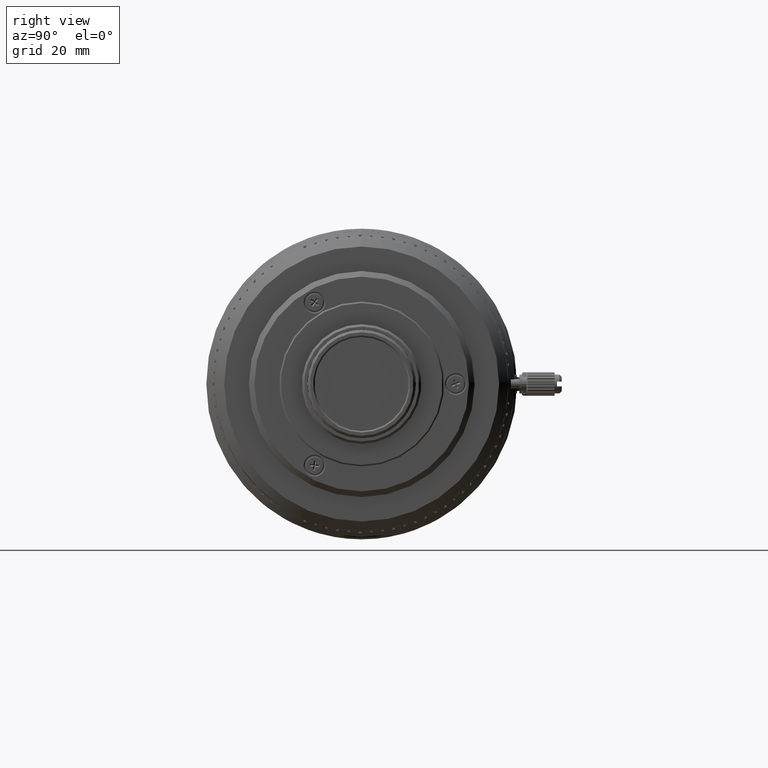
[diagram: clean part render]
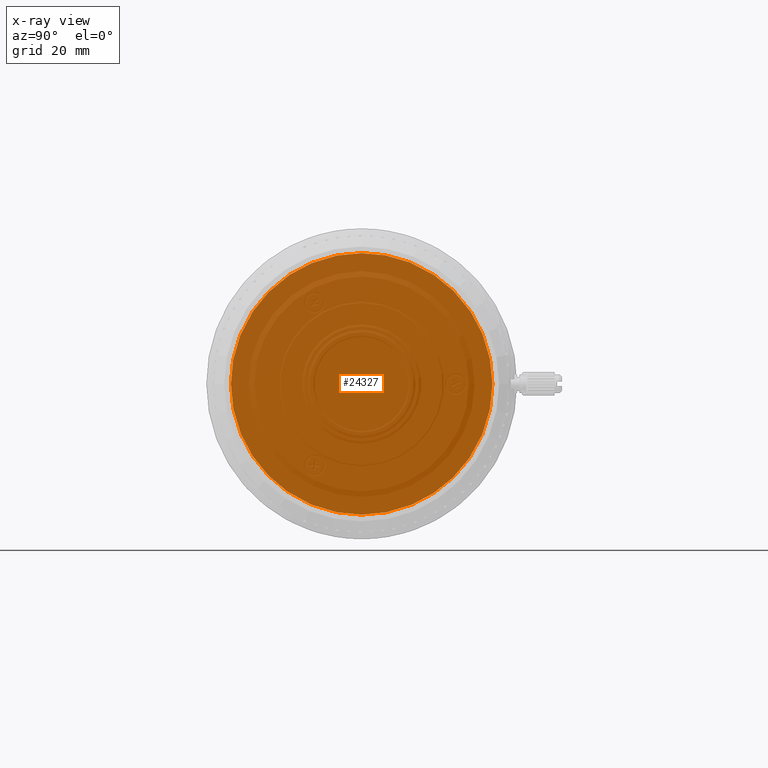
[diagram: x-ray — body ghosted, one internal face saturated and labeled with its STEP entity id]
A machine part, right view, then the same camera in x-ray: the body is ghosted and one INTERNAL B-rep face — a face not visible from any outside direction — is saturated and labeled: STEP entity #24327.
In plain terms, the highlighted planar face has unit normal (1, 0, -0).
Its self-contained STEP definition (entity closure, byte-faithful):
#1832 = CARTESIAN_POINT ( 'NONE',  ( 6.670101949384200424, 27.77005671654000452, 1.698375226501509072 ) ) ;
#2353 = CARTESIAN_POINT ( 'NONE',  ( 6.670101949384201312, 9.855068296384823512, 25.96299779098030314 ) ) ;
#2878 = CARTESIAN_POINT ( 'NONE',  ( 6.670101949384198647, 23.21131332216800303, 15.24514636743844953 ) ) ;
#2925 = CARTESIAN_POINT ( 'NONE',  ( 6.670101949384203088, -27.71210535098479255, -2.117719086140311902 ) ) ;
#3010 = CARTESIAN_POINT ( 'NONE',  ( 6.670101949384203976, -23.30742827021385111, 15.09779772559413047 ) ) ;
#3416 = CARTESIAN_POINT ( 'NONE',  ( 6.670101949384199536, 26.15183450016001032, 9.384460267777450682 ) ) ;
#3551 = CARTESIAN_POINT ( 'NONE',  ( 6.670101949384203976, -3.382572490651415187, 27.61555248508863869 ) ) ;
#3938 = CARTESIAN_POINT ( 'NONE',  ( 6.670101949384202200, 15.09779833443066721, 23.30742787575882602 ) ) ;
#3981 = CARTESIAN_POINT ( 'NONE',  ( 6.670101949384201312, -18.95872858976617081, -20.31408845770473448 ) ) ;
#4593 = CARTESIAN_POINT ( 'NONE',  ( 6.670101949384203976, -23.68348893255846477, 14.50412153896510326 ) ) ;
#5125 = CARTESIAN_POINT ( 'NONE',  ( 6.670101949384202200, -10.24818250076913095, 25.80991334626112987 ) ) ;
#5779 = CARTESIAN_POINT ( 'NONE',  ( 6.670101949384195983, 4.687504813459266728, -27.37194922564432531 ) ) ;
#5943 = CARTESIAN_POINT ( 'NONE',  ( 6.670101949384202200, -26.83397132795438722, -7.248706794133589426 ) ) ;
#6474 = CARTESIAN_POINT ( 'NONE',  ( 6.670101949384203088, -23.30744810404437573, -15.09775929170856834 ) ) ;
#6828 = CARTESIAN_POINT ( 'NONE',  ( 6.670101949384200424, 11.09440249698243086, -25.47492068714787194 ) ) ;
#6987 = CARTESIAN_POINT ( 'NONE',  ( 6.670101949384199536, -5.246713531095918093, -27.27001455910579963 ) ) ;
#7343 = CARTESIAN_POINT ( 'NONE',  ( 6.670101949384199536, 5.025457506980164801, -27.31156511289545108 ) ) ;
#7511 = CARTESIAN_POINT ( 'NONE',  ( 6.670101949384200424, -5.825497634454594120, -27.15384778733873361 ) ) ;
#7859 = CARTESIAN_POINT ( 'NONE',  ( 6.670101949384202200, 10.03863520394771847, -25.89222865959326825 ) ) ;
#8315 = CARTESIAN_POINT ( 'NONE',  ( 6.670101949384209306, 2.574551474000181512E-06, 27.77005605435178381 ) ) ;
#8642 = VERTEX_POINT ( 'NONE', #62530 ) ;
#9813 = CARTESIAN_POINT ( 'NONE',  ( 6.670101949384198647, 25.74415323164166480, 10.41254895580198614 ) ) ;
#10852 = CARTESIAN_POINT ( 'NONE',  ( 6.670101949384196871, 26.58627627152202777, 8.110186926303850186 ) ) ;
#10982 = CARTESIAN_POINT ( 'NONE',  ( 6.670101949384203976, -25.86150201199690457, 10.11730061791811686 ) ) ;
#11370 = CARTESIAN_POINT ( 'NONE',  ( 6.670101949384197759, 18.28056020399055726, 20.99228335459726935 ) ) ;
#11508 = CARTESIAN_POINT ( 'NONE',  ( 6.670101949384201312, -6.592123464492728679, 26.98305250840043712 ) ) ;
#11919 = CARTESIAN_POINT ( 'NONE',  ( 6.670101949384199536, 23.75701467543372303, 14.41042302648458318 ) ) ;
#11962 = CARTESIAN_POINT ( 'NONE',  ( 6.670101949384199536, -10.33099005839846996, -25.77688046542336764 ) ) ;
#12047 = CARTESIAN_POINT ( 'NONE',  ( 6.670101949384204865, -27.14251842005277382, 5.938873092803082621 ) ) ;
#12565 = CARTESIAN_POINT ( 'NONE',  ( 6.670101949384203088, -10.27651215307760779, 25.79864904480076149 ) ) ;
#12835 = CARTESIAN_POINT ( 'NONE',  ( 6.670101949384202200, -27.77005384932500576, 2.082634074917763043E-13 ) ) ;
#13083 = CARTESIAN_POINT ( 'NONE',  ( 6.670101949384202200, -27.77005384932500576, 2.082634074917763043E-13 ) ) ;
#13750 = CARTESIAN_POINT ( 'NONE',  ( 6.670101949384197759, 23.75685348575451172, -14.41073537938581417 ) ) ;
#13918 = CARTESIAN_POINT ( 'NONE',  ( 6.670101949384197759, -1.698197581845809268, -27.77002444160090278 ) ) ;
#13996 = CARTESIAN_POINT ( 'NONE',  ( 6.670101949384201312, 4.948743559974771777, 27.32557193565072140 ) ) ;
#14281 = CARTESIAN_POINT ( 'NONE',  ( 6.670101949384197759, 23.11150435916493961, -15.39604836254130760 ) ) ;
#14441 = CARTESIAN_POINT ( 'NONE',  ( 6.670101949384201312, -11.73012054310569674, -25.17889208261124878 ) ) ;
#14804 = CARTESIAN_POINT ( 'NONE',  ( 6.670101949384197759, 25.80991587860422953, -10.24817325738789719 ) ) ;
#14987 = CARTESIAN_POINT ( 'NONE',  ( 6.670101949384203088, -10.24817199266917811, -25.80991638079769146 ) ) ;
#15157 = B_SPLINE_CURVE_WITH_KNOTS ( 'NONE', 3,
 ( #43899, #1832, #76341, #100796, #59325, #91789, #58797, #18878, #84862, #51335, #10852, #3416, #28462, #91262, #68344, #9813, #50275, #92835, #101311, #26331, #11919, #2878, #66762, #43375, #90741, #99227, #67810, #42318, #35907, #11370, #44427, #92306, #3938, #74762, #18351, #75807, #50815, #83278, #42841, #100275, #27401, #19397, #75292, #2353, #51859, #84326, #36433, #68869, #61944, #103927, #13996, #93359, #52928, #20468, #71502, #85896, #54490, #61433 ),
 .UNSPECIFIED., .F., .F.,
 ( 4, 2, 2, 1, 1, 1, 1, 1, 2, 2, 1, 1, 1, 1, 1, 2, 2, 1, 1, 1, 1, 2, 2, 2, 1, 1, 1, 1, 2, 2, 1, 1, 1, 1, 1, 2, 2, 1, 1, 1, 1, 1, 4 ),
 ( 0.000000000000000000, 0.06249999605359574106, 0.06347655849193319100, 0.06445312093027064093, 0.06640624580694552692, 0.07031249556029531278, 0.07812499506699488450, 0.09374999408039402793, 0.1249999921071923148, 0.1259765545455297786, 0.1269531169838672424, 0.1289062418605421423, 0.1328124916138919975, 0.1406249911205917358, 0.1562499901339912123, 0.1874999881607900820, 0.1894531130374650651, 0.1914062379141400760, 0.1953124876674902088, 0.2031249871741903357, 0.2187499861875906171, 0.2499999842143912354, 0.3124999802679924166, 0.3144531051446674552, 0.3164062300213424939, 0.3203124797746924046, 0.3281249792813923927, 0.3437499782947923688, 0.3749999763215923210, 0.3759765387599298125, 0.3769531011982673596, 0.3789062260749423428, 0.3828124758282923645, 0.3906249753349924636, 0.4062499743483926617, 0.4374999723751932246, 0.4384765348135307161, 0.4394530972518682077, 0.4414062221285432464, 0.4453124718818933792, 0.4531249713885935892, 0.4687499704019938984, 0.4999999684287946833 ),
 .UNSPECIFIED. ) ;
#15347 = B_SPLINE_CURVE_WITH_KNOTS ( 'NONE', 3,
 ( #18919, #66803, #2925, #41821, #51382, #83846, #43414, #100316, #59894, #19446, #55982, #5943, #31514, #95888, #71417, #101361, #22980, #71939, #88431, #55453, #79402, #38965, #78885, #68917, #54415, #6474, #96928, #79930, #76912, #3981, #54933, #63946, #103848, #38436, #47462, #24037, #30992, #40005, #87378, #14441, #72456, #95369, #39491, #11962, #23514, #14987, #46924, #63432, #21939, #7511, #87901, #6987, #104369, #86858, #22455, #36479, #13918, #96408 ),
 .UNSPECIFIED., .F., .F.,
 ( 4, 1, 1, 1, 1, 1, 2, 2, 1, 1, 1, 1, 1, 2, 2, 1, 1, 1, 1, 2, 2, 2, 1, 1, 1, 1, 2, 2, 1, 1, 1, 1, 1, 2, 2, 1, 1, 1, 1, 1, 2, 2, 4 ),
 ( 0.000000000000000000, 0.03125000197269482000, 0.04687500295904221959, 0.05468750345221591591, 0.05859375369880277795, 0.06054687882209619509, 0.06152344138374292448, 0.06250000394538963999, 0.09375000591808567429, 0.1093750069044336914, 0.1171875073976077208, 0.1210937576441947078, 0.1230468827674882498, 0.1240234453291350070, 0.1250000078907817780, 0.1562500098634788115, 0.1718750108498273421, 0.1796875113430016213, 0.1835937615895887887, 0.1855468867128824140, 0.1875000118361760115, 0.2500000157815736590, 0.2812500177542724411, 0.2968750187406218877, 0.3046875192337966110, 0.3085937694803839726, 0.3105468946036776812, 0.3125000197269713897, 0.3437500216996700608, 0.3593750226860193964, 0.3671875231791941196, 0.3710937734257814813, 0.3730468985490751344, 0.3740234611107219886, 0.3750000236723687874, 0.4062500256450676805, 0.4218750266314171826, 0.4296875271245918504, 0.4335937773711792120, 0.4355469024944728651, 0.4365234650561196639, 0.4375000276177664627, 0.5000000315631657477 ),
 .UNSPECIFIED. ) ;
#15350 = CARTESIAN_POINT ( 'NONE',  ( 6.670101949384197759, 25.50876632935982968, -10.98084523781596467 ) ) ;
#15865 = CARTESIAN_POINT ( 'NONE',  ( 6.670101949384199536, 16.80039126075033806, -22.19456993233012554 ) ) ;
#16395 = EDGE_CURVE ( 'NONE', #38489, #8642, #77248, .T. ) ;
#16882 = FACE_OUTER_BOUND ( 'NONE', #101145, .T. ) ;
#18351 = CARTESIAN_POINT ( 'NONE',  ( 6.670101949384198647, 14.85127962036341032, 23.46574604798090746 ) ) ;
#18878 = CARTESIAN_POINT ( 'NONE',  ( 6.670101949384196871, 27.23247701047969827, 5.439837366004010022 ) ) ;
#18919 = CARTESIAN_POINT ( 'NONE',  ( 6.670101949384202200, -27.77005384932500576, 2.082634074917763043E-13 ) ) ;
#19006 = CARTESIAN_POINT ( 'NONE',  ( 6.670101949384202200, -16.57267078056432297, 22.29209967678919924 ) ) ;
#19397 = CARTESIAN_POINT ( 'NONE',  ( 6.670101949384199536, 10.11730190141474850, 25.86150150979780094 ) ) ;
#19446 = CARTESIAN_POINT ( 'NONE',  ( 6.670101949384203976, -27.31156548387000527, -5.025455490780222689 ) ) ;
#19533 = CARTESIAN_POINT ( 'NONE',  ( 6.670101949384203088, -5.163740036923951671, 27.28576276560870539 ) ) ;
#20068 = CARTESIAN_POINT ( 'NONE',  ( 6.670101949384202200, -27.54308053476609430, 3.588717793047349058 ) ) ;
#20468 = CARTESIAN_POINT ( 'NONE',  ( 6.670101949384201312, 4.321775402747795702, 27.43320166906487856 ) ) ;
#20597 = CARTESIAN_POINT ( 'NONE',  ( 6.670101949384203976, -5.079224407856478329, 27.30161647572101913 ) ) ;
#21112 = CARTESIAN_POINT ( 'NONE',  ( 6.670101949384203976, -27.33972255275521590, 4.870417232254760975 ) ) ;
#21939 = CARTESIAN_POINT ( 'NONE',  ( 6.670101949384201312, -6.592564857646112664, -26.98292504039513418 ) ) ;
#22293 = CARTESIAN_POINT ( 'NONE',  ( 6.670101949384195983, 25.77687994216342204, -10.33099136406202767 ) ) ;
#22455 = CARTESIAN_POINT ( 'NONE',  ( 6.670101949384200424, -5.079213376233091992, -27.30161748921211640 ) ) ;
#22980 = CARTESIAN_POINT ( 'NONE',  ( 6.670101949384202200, -25.86151391469089234, -10.11725940162114412 ) ) ;
#23341 = CARTESIAN_POINT ( 'NONE',  ( 6.670101949384203088, 7.248708486022986897, -26.83397086442582946 ) ) ;
#23494 = ORIENTED_EDGE ( 'NONE', *, *, #24569, .T. ) ;
#23514 = CARTESIAN_POINT ( 'NONE',  ( 6.670101949384201312, -10.27653152240393020, -25.79863904932214069 ) ) ;
#23878 = CARTESIAN_POINT ( 'NONE',  ( 6.670101949384197759, 25.66681609442757406, -10.60262258622167764 ) ) ;
#24037 = CARTESIAN_POINT ( 'NONE',  ( 6.670101949384203088, -15.29622886636503054, -23.17768346501000210 ) ) ;
#24327 = ADVANCED_FACE ( 'NONE', ( #16882 ), #73817, .T. ) ;
#24569 = EDGE_CURVE ( 'NONE', #8642, #38244, #15157, .T. ) ;
#25413 = DIRECTION ( 'NONE',  ( 1.000000000000000000, 1.119415959672399913E-16, -4.797496970024600021E-17 ) ) ;
#26331 = CARTESIAN_POINT ( 'NONE',  ( 6.670101949384198647, 24.46432322002809912, 13.19945221378386080 ) ) ;
#27401 = CARTESIAN_POINT ( 'NONE',  ( 6.670101949384201312, 10.16967515695290381, 25.84094865910721595 ) ) ;
#27535 = CARTESIAN_POINT ( 'NONE',  ( 6.670101949384203088, -26.83380137061669402, 7.249295318201114391 ) ) ;
#28059 = CARTESIAN_POINT ( 'NONE',  ( 6.670101949384203088, -9.384458880673179237, 26.15183500211617229 ) ) ;
#28462 = CARTESIAN_POINT ( 'NONE',  ( 6.670101949384197759, 25.80991284379126327, 10.24818376632293493 ) ) ;
#29124 = CARTESIAN_POINT ( 'NONE',  ( 6.670101949384204865, -23.27620267091132789, 15.14589362377105530 ) ) ;
#29637 = CARTESIAN_POINT ( 'NONE',  ( 6.670101949384202200, -13.19945133481251887, 24.46432370232592390 ) ) ;
#30302 = CARTESIAN_POINT ( 'NONE',  ( 6.670101949384199536, 10.16965430271150339, -25.84095468156525754 ) ) ;
#30829 = CARTESIAN_POINT ( 'NONE',  ( 6.670101949384198647, 25.17889157057199156, -11.73012163864181723 ) ) ;
#30864 = CARTESIAN_POINT ( 'NONE',  ( 6.670101949384209306, 2.574551474000181512E-06, 27.77005605435178381 ) ) ;
#30992 = CARTESIAN_POINT ( 'NONE',  ( 6.670101949384202200, -15.24512625800242560, -23.21132378238549876 ) ) ;
#31343 = CARTESIAN_POINT ( 'NONE',  ( 6.670101949384199536, 4.321505091065122706, -27.43322650432175180 ) ) ;
#31514 = CARTESIAN_POINT ( 'NONE',  ( 6.670101949384203088, -26.36381345327353287, -8.745829011784486795 ) ) ;
#31864 = CARTESIAN_POINT ( 'NONE',  ( 6.670101949384197759, 5.938538675450162785, -27.14261512340878824 ) ) ;
#32384 = CARTESIAN_POINT ( 'NONE',  ( 6.670101949384199536, 27.77005648110375446, 2.127444971821069708E-14 ) ) ;
#35514 = CARTESIAN_POINT ( 'NONE',  ( 6.670101949384204865, -15.54529624117426501, 23.01188106508660169 ) ) ;
#35907 = CARTESIAN_POINT ( 'NONE',  ( 6.670101949384199536, 20.31431456629928789, 18.95844990895038151 ) ) ;
#36037 = CARTESIAN_POINT ( 'NONE',  ( 6.670101949384204865, -27.77005671654300656, 0.8493654907271253052 ) ) ;
#36178 = AXIS2_PLACEMENT_3D ( 'NONE', #98283, #25413, #57872 ) ;
#36433 = CARTESIAN_POINT ( 'NONE',  ( 6.670101949384198647, 7.249297010691025278, 26.83380090691411368 ) ) ;
#36479 = CARTESIAN_POINT ( 'NONE',  ( 6.670101949384201312, -3.383278612058405521, -27.61548760928340940 ) ) ;
#36559 = CARTESIAN_POINT ( 'NONE',  ( 6.670101949384204865, -22.19411784823900646, 16.80094841908199754 ) ) ;
#37085 = CARTESIAN_POINT ( 'NONE',  ( 6.670101949384203088, -25.47476001964677650, 11.09471366016050453 ) ) ;
#37307 = CARTESIAN_POINT ( 'NONE',  ( 6.670101949384192430, 2.572826062563681420E-06, -27.77005421721808531 ) ) ;
#37613 = CARTESIAN_POINT ( 'NONE',  ( 6.670101949384203976, -25.89220858090398991, 10.03870517571136922 ) ) ;
#38244 = VERTEX_POINT ( 'NONE', #8315 ) ;
#38267 = CARTESIAN_POINT ( 'NONE',  ( 6.670101949384197759, 4.948700289736334135, -27.32557591120767881 ) ) ;
#38436 = CARTESIAN_POINT ( 'NONE',  ( 6.670101949384200424, -15.54541057866116915, -23.01178829043319851 ) ) ;
#38489 = VERTEX_POINT ( 'NONE', #37307 ) ;
#38800 = CARTESIAN_POINT ( 'NONE',  ( 6.670101949384196871, 14.99921822404996696, -23.37099065684145671 ) ) ;
#38965 = CARTESIAN_POINT ( 'NONE',  ( 6.670101949384203088, -24.10541021567187414, -13.80222779641438358 ) ) ;
#39326 = CARTESIAN_POINT ( 'NONE',  ( 6.670101949384197759, 25.74411907337990968, -10.41261514762922857 ) ) ;
#39491 = CARTESIAN_POINT ( 'NONE',  ( 6.670101949384199536, -10.41261385431728037, -25.74411959643120440 ) ) ;
#39846 = CARTESIAN_POINT ( 'NONE',  ( 6.670101949384195983, 27.28575048521339852, -5.163783249688573385 ) ) ;
#40005 = CARTESIAN_POINT ( 'NONE',  ( 6.670101949384203088, -14.41073467434223687, -23.75685391830463189 ) ) ;
#40363 = CARTESIAN_POINT ( 'NONE',  ( 6.670101949384198647, 13.80222858909680106, -24.10540975957867005 ) ) ;
#41821 = CARTESIAN_POINT ( 'NONE',  ( 6.670101949384204865, -27.54308053477340223, -3.588484469616667116 ) ) ;
#42318 = CARTESIAN_POINT ( 'NONE',  ( 6.670101949384197759, 21.27363027794388017, 17.89494787063843972 ) ) ;
#42841 = CARTESIAN_POINT ( 'NONE',  ( 6.670101949384199536, 11.09471485041930805, 25.47475949724416466 ) ) ;
#43375 = CARTESIAN_POINT ( 'NONE',  ( 6.670101949384197759, 23.11155869858223255, 15.39598139346515282 ) ) ;
#43414 = CARTESIAN_POINT ( 'NONE',  ( 6.670101949384203088, -27.33972255276906083, -4.870379560231272720 ) ) ;
#43497 = CARTESIAN_POINT ( 'NONE',  ( 6.670101949384203088, -26.36368598528173379, 8.746270404767207296 ) ) ;
#43899 = CARTESIAN_POINT ( 'NONE',  ( 6.670101949384199536, 27.77005648110375446, 2.127444971821069708E-14 ) ) ;
#44027 = CARTESIAN_POINT ( 'NONE',  ( 6.670101949384203088, -17.89494764484327050, 21.27363047742911561 ) ) ;
#44427 = CARTESIAN_POINT ( 'NONE',  ( 6.670101949384202200, 16.80094879290104259, 22.19411754457543751 ) ) ;
#44557 = CARTESIAN_POINT ( 'NONE',  ( 6.670101949384203088, -10.33095177708866608, 25.77690022042958873 ) ) ;
#45065 = CARTESIAN_POINT ( 'NONE',  ( 6.670101949384203976, -14.41042232101041876, 23.75701510823094864 ) ) ;
#46250 = CARTESIAN_POINT ( 'NONE',  ( 6.670101949384197759, 10.19475077061177615, -25.83106533201681643 ) ) ;
#46761 = CARTESIAN_POINT ( 'NONE',  ( 6.670101949384198647, 25.79863852594379026, -10.27653283631269332 ) ) ;
#46924 = CARTESIAN_POINT ( 'NONE',  ( 6.670101949384200424, -9.384795181091483585, -26.15173788332900173 ) ) ;
#47297 = CARTESIAN_POINT ( 'NONE',  ( 6.670101949384195983, 27.15384737970419948, -5.825499534084291220 ) ) ;
#47462 = CARTESIAN_POINT ( 'NONE',  ( 6.670101949384202200, -15.39604778378869732, -23.11150474467536498 ) ) ;
#47816 = CARTESIAN_POINT ( 'NONE',  ( 6.670101949384198647, 26.15173738160656924, -9.384796567438034032 ) ) ;
#48325 = CARTESIAN_POINT ( 'NONE',  ( 6.670101949384198647, 9.486539130765612171, -26.10121577578356877 ) ) ;
#50275 = CARTESIAN_POINT ( 'NONE',  ( 6.670101949384198647, 25.66688220724509861, 10.60249447294226322 ) ) ;
#50331 = VERTEX_POINT ( 'NONE', #12835 ) ;
#50815 = CARTESIAN_POINT ( 'NONE',  ( 6.670101949384201312, 13.80263855190399980, 24.10519819831248256 ) ) ;
#51335 = CARTESIAN_POINT ( 'NONE',  ( 6.670101949384199536, 26.98305207026810848, 6.592125252394372303 ) ) ;
#51382 = CARTESIAN_POINT ( 'NONE',  ( 6.670101949384205753, -27.43321440423597934, -4.321570192245268061 ) ) ;
#51463 = CARTESIAN_POINT ( 'NONE',  ( 6.670101949384203088, -15.24514577905451063, 23.21131370860270238 ) ) ;
#51859 = CARTESIAN_POINT ( 'NONE',  ( 6.670101949384200424, 9.486796609957064419, 26.10114141943185828 ) ) ;
#51988 = CARTESIAN_POINT ( 'NONE',  ( 6.670101949384203088, -27.71210535098293093, 2.118030184040880837 ) ) ;
#52530 = CARTESIAN_POINT ( 'NONE',  ( 6.670101949384205753, -25.83107089225322284, 10.19473968418029131 ) ) ;
#52928 = CARTESIAN_POINT ( 'NONE',  ( 6.670101949384202200, 4.687649623105524910, 27.37193592103432138 ) ) ;
#53058 = CARTESIAN_POINT ( 'NONE',  ( 6.670101949384203088, -5.439835410034131513, 27.23247740105639281 ) ) ;
#53575 = CARTESIAN_POINT ( 'NONE',  ( 6.670101949384203088, -27.43321440422516133, 4.321706297585665268 ) ) ;
#54415 = CARTESIAN_POINT ( 'NONE',  ( 6.670101949384203088, -23.37099105660072595, -14.99921760128371950 ) ) ;
#54490 = CARTESIAN_POINT ( 'NONE',  ( 6.670101949384202200, 0.8494556045802248434, 27.77004041615171204 ) ) ;
#54768 = CARTESIAN_POINT ( 'NONE',  ( 6.670101949384198647, 23.17768307348313783, -15.29622945962918479 ) ) ;
#54933 = CARTESIAN_POINT ( 'NONE',  ( 6.670101949384201312, -17.89543548547250396, -21.27323463812280835 ) ) ;
#55453 = CARTESIAN_POINT ( 'NONE',  ( 6.670101949384202200, -25.47492120926716552, -11.09440130731946184 ) ) ;
#55816 = CARTESIAN_POINT ( 'NONE',  ( 6.670101949384199536, 22.77597759342775774, -15.89136520500533400 ) ) ;
#55982 = CARTESIAN_POINT ( 'NONE',  ( 6.670101949384204865, -27.14261553855844866, -5.938536793222844778 ) ) ;
#56337 = CARTESIAN_POINT ( 'NONE',  ( 6.670101949384196871, 24.46404113838672956, -13.19999883084299697 ) ) ;
#57872 = DIRECTION ( 'NONE',  ( -1.119415959672399913E-16, 1.000000000000000000, 0.000000000000000000 ) ) ;
#58797 = CARTESIAN_POINT ( 'NONE',  ( 6.670101949384196871, 27.27003475811098454, 5.246644249025764317 ) ) ;
#59325 = CARTESIAN_POINT ( 'NONE',  ( 6.670101949384197759, 27.29616557491358009, 5.108450519444117432 ) ) ;
#59894 = CARTESIAN_POINT ( 'NONE',  ( 6.670101949384204865, -27.31606662425016907, -5.000921987345416042 ) ) ;
#59979 = CARTESIAN_POINT ( 'NONE',  ( 6.670101949384201312, -10.98060488527869438, 25.50889026007409299 ) ) ;
#60503 = CARTESIAN_POINT ( 'NONE',  ( 6.670101949384203088, -20.99228352582103341, 18.28056003277612618 ) ) ;
#61043 = CARTESIAN_POINT ( 'NONE',  ( 6.670101949384203976, -15.29619456521848520, 23.17771129728244262 ) ) ;
#61433 = CARTESIAN_POINT ( 'NONE',  ( 6.670101949384209306, 2.574551474000181512E-06, 27.77005605435178381 ) ) ;
#61561 = CARTESIAN_POINT ( 'NONE',  ( 6.670101949384203088, -24.89351716974356066, 12.37099458277839581 ) ) ;
#61944 = CARTESIAN_POINT ( 'NONE',  ( 6.670101949384201312, 5.025446999123547087, 27.31156814747714989 ) ) ;
#62530 = CARTESIAN_POINT ( 'NONE',  ( 6.670101949384199536, 27.77005648110375446, 2.127444971821069708E-14 ) ) ;
#62742 = CARTESIAN_POINT ( 'NONE',  ( 6.670101949384196871, 14.85115150715843413, -23.46581216082559962 ) ) ;
#63269 = CARTESIAN_POINT ( 'NONE',  ( 6.670101949384197759, 18.28101259047326366, -20.99172582392917619 ) ) ;
#63432 = CARTESIAN_POINT ( 'NONE',  ( 6.670101949384201312, -8.110773882474669350, -26.58610679935076959 ) ) ;
#63788 = CARTESIAN_POINT ( 'NONE',  ( 6.670101949384199536, 4.870362911349271684, -27.33972564650827763 ) ) ;
#63946 = CARTESIAN_POINT ( 'NONE',  ( 6.670101949384203088, -16.57303666088069960, -22.29180279746701743 ) ) ;
#64310 = CARTESIAN_POINT ( 'NONE',  ( 6.670101949384200424, 8.745830489542823827, -26.36381296108546834 ) ) ;
#64825 = CARTESIAN_POINT ( 'NONE',  ( 6.670101949384198647, 23.21132339617042106, -15.24512684600079382 ) ) ;
#66762 = CARTESIAN_POINT ( 'NONE',  ( 6.670101949384199536, 23.17771090581589988, 15.29619515843670996 ) ) ;
#66803 = CARTESIAN_POINT ( 'NONE',  ( 6.670101949384203088, -27.77005671654299590, -0.8491877204991638006 ) ) ;
#67810 = CARTESIAN_POINT ( 'NONE',  ( 6.670101949384200424, 22.29209936988714702, 16.57267119050300508 ) ) ;
#67949 = CARTESIAN_POINT ( 'NONE',  ( 6.670101949384203976, -5.108448514909542659, 27.29616594999004775 ) ) ;
#68344 = CARTESIAN_POINT ( 'NONE',  ( 6.670101949384198647, 25.77689969726367991, 10.33095308264252132 ) ) ;
#68869 = CARTESIAN_POINT ( 'NONE',  ( 6.670101949384200424, 5.938874976025344310, 27.14251800464452558 ) ) ;
#68917 = CARTESIAN_POINT ( 'NONE',  ( 6.670101949384203088, -23.46581256838955198, -14.85115086354519320 ) ) ;
#69541 = CARTESIAN_POINT ( 'NONE',  ( 6.670101949384203088, -26.10114191903268832, 9.486795237283999427 ) ) ;
#70061 = CARTESIAN_POINT ( 'NONE',  ( 6.670101949384203088, -27.31606662423558518, 5.000933011195762390 ) ) ;
#70716 = CARTESIAN_POINT ( 'NONE',  ( 6.670101949384196871, 15.14591166104872855, -23.27618813403235265 ) ) ;
#71250 = CARTESIAN_POINT ( 'NONE',  ( 6.670101949384199536, 9.854930361242738357, -25.96303762472469145 ) ) ;
#71417 = CARTESIAN_POINT ( 'NONE',  ( 6.670101949384203088, -25.96303812625249563, -9.854929040613399138 ) ) ;
#71502 = CARTESIAN_POINT ( 'NONE',  ( 6.670101949384202200, 3.588834931629613756, 27.54305896858153346 ) ) ;
#71773 = CARTESIAN_POINT ( 'NONE',  ( 6.670101949384196871, 27.23243717675302378, -5.439975301263683782 ) ) ;
#71939 = CARTESIAN_POINT ( 'NONE',  ( 6.670101949384201312, -25.84095518384943446, -10.16965302643039770 ) ) ;
#72292 = CARTESIAN_POINT ( 'NONE',  ( 6.670101949384197759, 27.30161662989496918, -5.079218009315948912 ) ) ;
#72456 = CARTESIAN_POINT ( 'NONE',  ( 6.670101949384200424, -10.98084403017186439, -25.50876684942982919 ) ) ;
#72817 = CARTESIAN_POINT ( 'NONE',  ( 6.670101949384199536, 27.61551978073958580, -3.383105423482593466 ) ) ;
#73817 = PLANE ( 'NONE',  #36178 ) ;
#74762 = CARTESIAN_POINT ( 'NONE',  ( 6.670101949384203088, 14.99929326169470833, 23.37095193362836909 ) ) ;
#74779 = EDGE_CURVE ( 'NONE', #50331, #38489, #15347, .T. ) ;
#75288 = EDGE_CURVE ( 'NONE', #38244, #50331, #99030, .T. ) ;
#75292 = CARTESIAN_POINT ( 'NONE',  ( 6.670101949384199536, 10.03870647030050378, 25.89220807883976150 ) ) ;
#75807 = CARTESIAN_POINT ( 'NONE',  ( 6.670101949384199536, 14.50412223166557091, 23.68348850764121138 ) ) ;
#75940 = CARTESIAN_POINT ( 'NONE',  ( 6.670101949384203088, -10.60249320838243392, 25.66688272953894412 ) ) ;
#76341 = CARTESIAN_POINT ( 'NONE',  ( 6.670101949384196871, 27.61551978074455249, 3.382749882963509425 ) ) ;
#76912 = CARTESIAN_POINT ( 'NONE',  ( 6.670101949384203088, -20.99172599502114522, -18.28101241937118715 ) ) ;
#77000 = CARTESIAN_POINT ( 'NONE',  ( 6.670101949384204865, -27.31156851876907155, 5.025444981637837927 ) ) ;
#77248 = B_SPLINE_CURVE_WITH_KNOTS ( 'NONE', 3,
 ( #94671, #84079, #80284, #103154, #31343, #5779, #63788, #38267, #104720, #7343, #31864, #23341, #64310, #48325, #71250, #7859, #88793, #30302, #46250, #6828, #87734, #40363, #103684, #62742, #38800, #96762, #70716, #15865, #63269, #95198, #96241, #87215, #55816, #88265, #14281, #54768, #64825, #13750, #56337, #30829, #15350, #23878, #39326, #22293, #46761, #14804, #47816, #80790, #97280, #47297, #71773, #104202, #39846, #95719, #72292, #72817, #105243, #32384 ),
 .UNSPECIFIED., .F., .F.,
 ( 4, 1, 1, 1, 1, 1, 2, 2, 1, 1, 1, 1, 1, 2, 2, 1, 1, 1, 1, 2, 2, 2, 1, 1, 1, 1, 2, 2, 1, 1, 1, 1, 1, 2, 2, 1, 1, 1, 1, 1, 2, 2, 4 ),
 ( 0.5000000315631657477, 0.5312500295904656333, 0.5468750286041156317, 0.5546875281109406863, 0.5585937778643531582, 0.5605469027410593386, 0.5615234651794124288, 0.5625000276177655190, 0.5937500256450647385, 0.6093750246587144037, 0.6171875241655392363, 0.6210937739189517082, 0.6230468987956578886, 0.6240234612340109788, 0.6250000236723640690, 0.6562500216996649538, 0.6718750207133155072, 0.6796875202201406729, 0.6835937699735532558, 0.6855468948502596582, 0.6875000197269659497, 0.7500000157815690516, 0.7812500138088706025, 0.7968750128225212670, 0.8046875123293466547, 0.8085937620827592376, 0.8105468869594656400, 0.8125000118361720425, 0.8437500098634747037, 0.8593750088771259232, 0.8671875083839516440, 0.8710937581373644489, 0.8730468830140708514, 0.8740234454524241636, 0.8750000078907774759, 0.9062500059180822465, 0.9218750049317345763, 0.9296875044385608522, 0.9335937541919738791, 0.9355468790686803926, 0.9365234415070337048, 0.9375000039453870171, 1.000000000000000000 ),
 .UNSPECIFIED. ) ;
#77518 = CARTESIAN_POINT ( 'NONE',  ( 6.670101949384206641, -18.95844982334029183, 20.31431465190874519 ) ) ;
#78055 = CARTESIAN_POINT ( 'NONE',  ( 6.670101949384203976, -23.37095233337467093, 14.99929263899187681 ) ) ;
#78885 = CARTESIAN_POINT ( 'NONE',  ( 6.670101949384203088, -23.68361234324355280, -14.50388239411324065 ) ) ;
#79402 = CARTESIAN_POINT ( 'NONE',  ( 6.670101949384203088, -24.89379925140972460, -12.37044796567690419 ) ) ;
#79930 = CARTESIAN_POINT ( 'NONE',  ( 6.670101949384202200, -22.19457023591000677, -16.80039088702668693 ) ) ;
#80284 = CARTESIAN_POINT ( 'NONE',  ( 6.670101949384199536, 2.117568011504673109, -27.71213354773498949 ) ) ;
#80790 = CARTESIAN_POINT ( 'NONE',  ( 6.670101949384199536, 26.58610631417648662, -8.110775450340334203 ) ) ;
#83278 = CARTESIAN_POINT ( 'NONE',  ( 6.670101949384201312, 12.37099558291715873, 24.89351666505778837 ) ) ;
#83846 = CARTESIAN_POINT ( 'NONE',  ( 6.670101949384204865, -27.37194290835936172, -4.687538811282170315 ) ) ;
#83933 = CARTESIAN_POINT ( 'NONE',  ( 6.670101949384204865, -24.10519865446343957, 13.80263775913093305 ) ) ;
#84079 = CARTESIAN_POINT ( 'NONE',  ( 6.670101949384202200, 0.8491025429608548558, -27.77007285408402737 ) ) ;
#84326 = CARTESIAN_POINT ( 'NONE',  ( 6.670101949384200424, 8.746271882715905832, 26.36368549301680630 ) ) ;
#84454 = CARTESIAN_POINT ( 'NONE',  ( 6.670101949384202200, -10.41254766257994469, 25.74415375461139632 ) ) ;
#84862 = CARTESIAN_POINT ( 'NONE',  ( 6.670101949384196871, 27.15392173601373216, 5.825242054892060928 ) ) ;
#84991 = CARTESIAN_POINT ( 'NONE',  ( 6.670101949384201312, -11.72971058023638768, 25.17910364386450794 ) ) ;
#85515 = CARTESIAN_POINT ( 'NONE',  ( 6.670101949384203976, -5.246642264755702278, 27.27003513974840843 ) ) ;
#85896 = CARTESIAN_POINT ( 'NONE',  ( 6.670101949384203088, 2.118185867782321097, 27.71207678143716890 ) ) ;
#86024 = CARTESIAN_POINT ( 'NONE',  ( 6.670101949384203088, -15.89115126775008235, 22.77615112719914592 ) ) ;
#86858 = CARTESIAN_POINT ( 'NONE',  ( 6.670101949384200424, -5.108469369137367266, -27.29615992764794896 ) ) ;
#87215 = CARTESIAN_POINT ( 'NONE',  ( 6.670101949384195983, 22.29180249060437902, -16.57303707076044930 ) ) ;
#87378 = CARTESIAN_POINT ( 'NONE',  ( 6.670101949384201312, -13.19999795226840611, -24.46404162045954678 ) ) ;
#87734 = CARTESIAN_POINT ( 'NONE',  ( 6.670101949384198647, 12.37044896549236483, -24.89379874688656358 ) ) ;
#87901 = CARTESIAN_POINT ( 'NONE',  ( 6.670101949384200424, -5.439973345164526464, -27.23243756741589294 ) ) ;
#88265 = CARTESIAN_POINT ( 'NONE',  ( 6.670101949384198647, 23.01178791406062274, -15.54541113573884203 ) ) ;
#88431 = CARTESIAN_POINT ( 'NONE',  ( 6.670101949384203976, -25.83106585527226784, -10.19474944478890244 ) ) ;
#88793 = CARTESIAN_POINT ( 'NONE',  ( 6.670101949384196871, 10.11726068527837796, -25.86151341247937552 ) ) ;
#89247 = ORIENTED_EDGE ( 'NONE', *, *, #16395, .T. ) ;
#90741 = CARTESIAN_POINT ( 'NONE',  ( 6.670101949384199536, 23.01188068875119086, 15.54529679823057187 ) ) ;
#91262 = CARTESIAN_POINT ( 'NONE',  ( 6.670101949384198647, 25.79864852152483934, 10.27651346686333511 ) ) ;
#91632 = ORIENTED_EDGE ( 'NONE', *, *, #75288, .T. ) ;
#91789 = CARTESIAN_POINT ( 'NONE',  ( 6.670101949384199536, 27.28576238789544561, 5.163742033349181249 ) ) ;
#91920 = CARTESIAN_POINT ( 'NONE',  ( 6.670101949384203976, -25.96299829251280400, 9.855066975850849786 ) ) ;
#92306 = CARTESIAN_POINT ( 'NONE',  ( 6.670101949384201312, 15.14589423911262145, 23.27620227044697998 ) ) ;
#92438 = CARTESIAN_POINT ( 'NONE',  ( 6.670101949384205753, -27.37194290834655774, 4.687611724863603335 ) ) ;
#92835 = CARTESIAN_POINT ( 'NONE',  ( 6.670101949384198647, 25.50888974000437059, 10.98060609296215873 ) ) ;
#92966 = CARTESIAN_POINT ( 'NONE',  ( 6.670101949384203088, -25.84094916137556197, 10.16967388084533397 ) ) ;
#93359 = CARTESIAN_POINT ( 'NONE',  ( 6.670101949384203088, 4.870437729484046407, 27.33971877245101467 ) ) ;
#94006 = CARTESIAN_POINT ( 'NONE',  ( 6.670101949384206641, -27.32557427014778284, 4.948730905512154443 ) ) ;
#94671 = CARTESIAN_POINT ( 'NONE',  ( 6.670101949384192430, 2.572826062563681420E-06, -27.77005421721808531 ) ) ;
#95198 = CARTESIAN_POINT ( 'NONE',  ( 6.670101949384200424, 20.31408837215148111, -18.95872867531033279 ) ) ;
#95369 = CARTESIAN_POINT ( 'NONE',  ( 6.670101949384201312, -10.60262132161682835, -25.66681661677480619 ) ) ;
#95719 = CARTESIAN_POINT ( 'NONE',  ( 6.670101949384198647, 27.29615955245137116, -5.108471373905804747 ) ) ;
#95888 = CARTESIAN_POINT ( 'NONE',  ( 6.670101949384203088, -26.10121627535573552, -9.486537758090348049 ) ) ;
#96241 = CARTESIAN_POINT ( 'NONE',  ( 6.670101949384198647, 21.27323443872714037, -17.89543571115934029 ) ) ;
#96408 = CARTESIAN_POINT ( 'NONE',  ( 6.670101949384192430, 2.572826062563681420E-06, -27.77005421721808531 ) ) ;
#96762 = CARTESIAN_POINT ( 'NONE',  ( 6.670101949384197759, 15.09775990061955575, -23.30744770957124956 ) ) ;
#96928 = CARTESIAN_POINT ( 'NONE',  ( 6.670101949384203976, -23.27618853421825662, -15.14591104608161309 ) ) ;
#97280 = CARTESIAN_POINT ( 'NONE',  ( 6.670101949384199536, 26.98292460228731215, -6.592566645344403398 ) ) ;
#98283 = CARTESIAN_POINT ( 'NONE',  ( 6.670101949384201312, -1.275424210689400028E-12, 7.105427357601000281E-15 ) ) ;
#99030 = B_SPLINE_CURVE_WITH_KNOTS ( 'NONE', 3,
 ( #30864, #102492, #3551, #20597, #67949, #19533, #85515, #53058, #101982, #11508, #101450, #28059, #5125, #12565, #44557, #84454, #75940, #59979, #84991, #29637, #45065, #51463, #61043, #100407, #35514, #86024, #19006, #44027, #77518, #60503, #36559, #29124, #3010, #78055, #100923, #4593, #83933, #61561, #37085, #52530, #92966, #10982, #37613, #91920, #69541, #43497, #27535, #12047, #77000, #70061, #94006, #21112, #92438, #53575, #20068, #51988, #36037, #13083 ),
 .UNSPECIFIED., .F., .F.,
 ( 4, 2, 2, 1, 1, 1, 1, 1, 2, 2, 1, 1, 1, 1, 1, 2, 2, 1, 1, 1, 1, 2, 2, 2, 1, 1, 1, 1, 2, 2, 1, 1, 1, 1, 1, 2, 2, 1, 1, 1, 1, 1, 4 ),
 ( 0.4999999684287946833, 0.5624999723751972214, 0.5634765349368597853, 0.5644530974985222382, 0.5664062226218472551, 0.5703124728684973999, 0.5781249733617975783, 0.5937499743483979353, 0.6249999763215986492, 0.6259765388832612132, 0.6269531014449236661, 0.6289062265682486830, 0.6328124768148988277, 0.6406249773081988952, 0.6562499782947991411, 0.6874999802679997440, 0.6894531053913246499, 0.6914062305146496668, 0.6953124807612997005, 0.7031249812545997679, 0.7187499822411999029, 0.7499999842144002837, 0.8124999881608010455, 0.8144531132841259513, 0.8164062384074510792, 0.8203124886541010019, 0.8281249891474009583, 0.8437499901340008712, 0.8749999921072006970, 0.8759765546688631499, 0.8769531172305257138, 0.8789062423538507307, 0.8828124926005006534, 0.8906249930938003878, 0.9062499940804001897, 0.9374999960535996824, 0.9384765586152621353, 0.9394531211769245882, 0.9414062463002497161, 0.9453124965468997498, 0.9531249970401998173, 0.9687499980267998412, 1.000000000000000000 ),
 .UNSPECIFIED. ) ;
#99227 = CARTESIAN_POINT ( 'NONE',  ( 6.670101949384196871, 22.77615077294826307, 15.89115177490908337 ) ) ;
#100008 = ORIENTED_EDGE ( 'NONE', *, *, #74779, .T. ) ;
#100275 = CARTESIAN_POINT ( 'NONE',  ( 6.670101949384200424, 10.19474101081985573, 25.83107036861731132 ) ) ;
#100316 = CARTESIAN_POINT ( 'NONE',  ( 6.670101949384203976, -27.32557427016207896, -4.948709118230311788 ) ) ;
#100407 = CARTESIAN_POINT ( 'NONE',  ( 6.670101949384203976, -15.39598081474847646, 23.11155908404175463 ) ) ;
#100796 = CARTESIAN_POINT ( 'NONE',  ( 6.670101949384199536, 27.30161662991004334, 5.079223564486361475 ) ) ;
#100923 = CARTESIAN_POINT ( 'NONE',  ( 6.670101949384203976, -23.46574645553974037, 14.85127897679667974 ) ) ;
#101145 = EDGE_LOOP ( 'NONE', ( #23494, #91632, #100008, #89247 ) ) ;
#101311 = CARTESIAN_POINT ( 'NONE',  ( 6.670101949384197759, 25.17910313173263859, 11.72971167595943243 ) ) ;
#101361 = CARTESIAN_POINT ( 'NONE',  ( 6.670101949384201312, -25.89222916166478683, -10.03863390921743814 ) ) ;
#101450 = CARTESIAN_POINT ( 'NONE',  ( 6.670101949384203088, -8.110185357872298439, 26.58627675684889269 ) ) ;
#101982 = CARTESIAN_POINT ( 'NONE',  ( 6.670101949384203088, -5.825240155274990173, 27.15392214360037215 ) ) ;
#102492 = CARTESIAN_POINT ( 'NONE',  ( 6.670101949384203088, -1.698903700052110999, 27.77008931717883655 ) ) ;
#103154 = CARTESIAN_POINT ( 'NONE',  ( 6.670101949384201312, 3.588371539820336853, -27.54310154329782279 ) ) ;
#103684 = CARTESIAN_POINT ( 'NONE',  ( 6.670101949384197759, 14.50388308681803018, -23.68361191834066304 ) ) ;
#103848 = CARTESIAN_POINT ( 'NONE',  ( 6.670101949384202200, -15.89136469785584715, -22.77597794768656314 ) ) ;
#103927 = CARTESIAN_POINT ( 'NONE',  ( 6.670101949384203088, 5.000940351549521878, 27.31606526947109614 ) ) ;
#104202 = CARTESIAN_POINT ( 'NONE',  ( 6.670101949384199536, 27.27001417736253686, -5.246715515555750997 ) ) ;
#104369 = CARTESIAN_POINT ( 'NONE',  ( 6.670101949384202200, -5.163781253047177167, -27.28575086304104502 ) ) ;
#104720 = CARTESIAN_POINT ( 'NONE',  ( 6.670101949384199536, 5.000918458027370228, -27.31606728101693449 ) ) ;
#105243 = CARTESIAN_POINT ( 'NONE',  ( 6.670101949384195095, 27.77005671653999386, -1.698730766971320749 ) ) ;